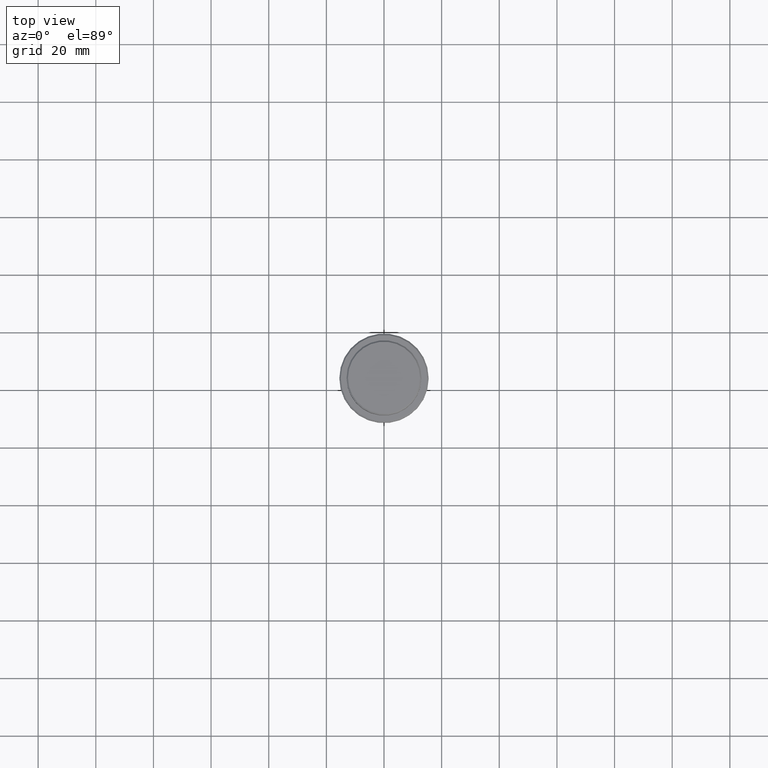
[diagram: clean part render]
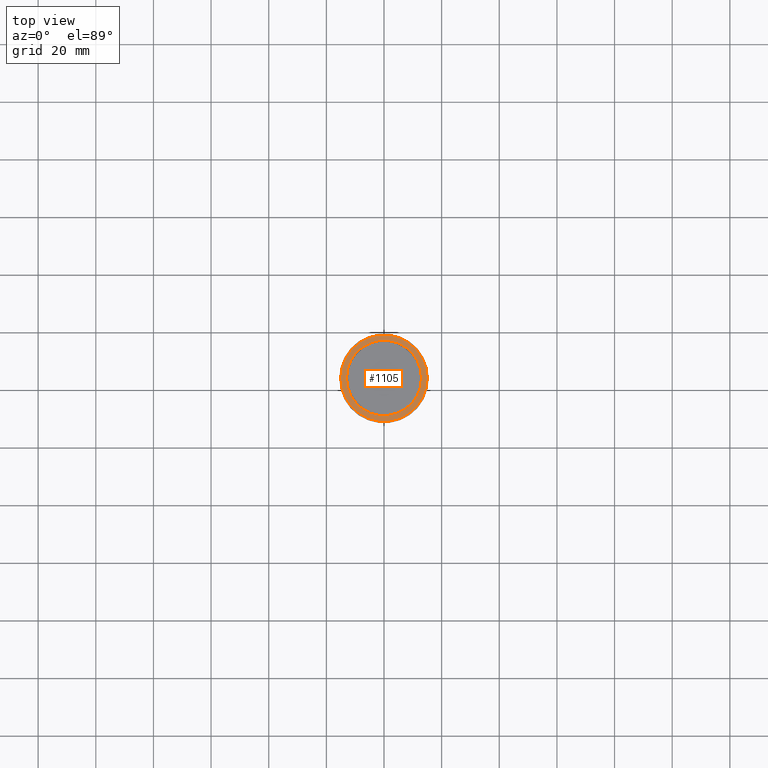
[diagram: same view with one face highlighted and labeled with its STEP entity id]
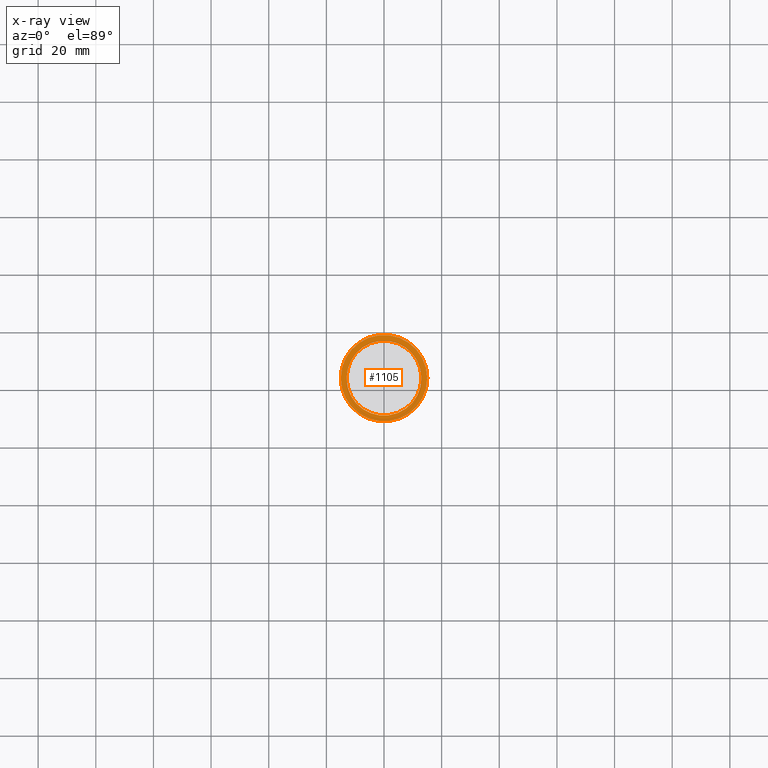
[diagram: x-ray of the same camera — body ghosted, the highlighted face saturated]
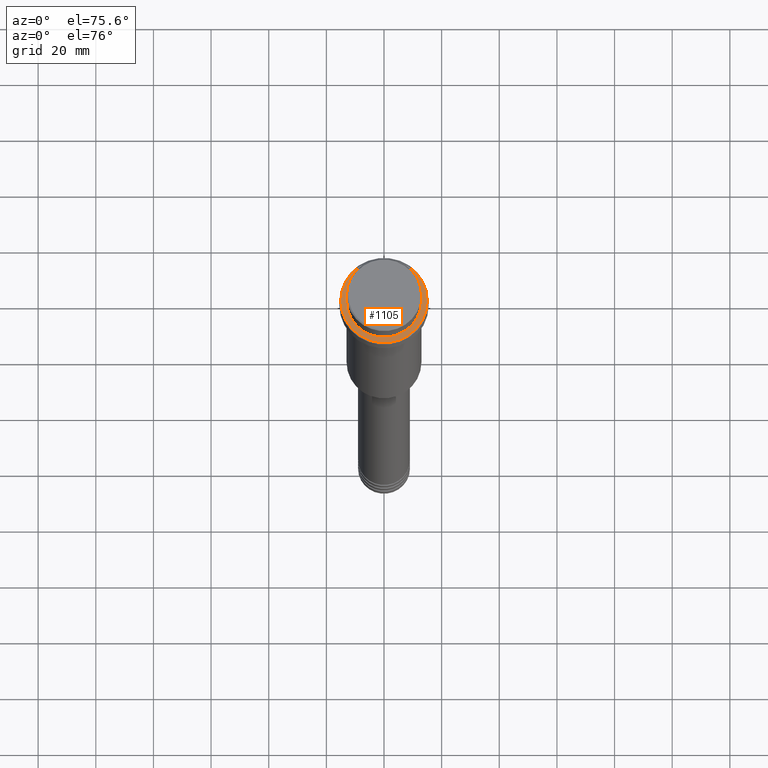
[diagram: same view with one face highlighted and labeled with its STEP entity id]
A machine part, top view. The second image highlights one B-rep face of the part: STEP entity #1105.
The next image is the same camera in x-ray: the body ghosted, the highlighted face saturated — about 0% of this face is hidden behind the body in this view.
A second angle (auxiliary view) of the same face is appended — the face is thin or edge-on in the first view.
In plain terms, the highlighted planar face has unit normal (0, -0, 1).
Its self-contained STEP definition (entity closure, byte-faithful):
#5 = AXIS2_PLACEMENT_3D ( 'NONE', #1054, #1182, #58 ) ;
#58 = DIRECTION ( 'NONE',  ( 1.000000000000000000, 0.000000000000000000, 0.000000000000000000 ) ) ;
#64 = CARTESIAN_POINT ( 'NONE',  ( 0.000000000000000000, 0.000000000000000000, -9.000000000000001776 ) ) ;
#89 = FACE_BOUND ( 'NONE', #479, .T. ) ;
#91 = AXIS2_PLACEMENT_3D ( 'NONE', #1295, #988, #536 ) ;
#147 = VERTEX_POINT ( 'NONE', #1050 ) ;
#215 = AXIS2_PLACEMENT_3D ( 'NONE', #819, #1255, #276 ) ;
#276 = DIRECTION ( 'NONE',  ( 1.000000000000000000, 0.000000000000000000, 0.000000000000000000 ) ) ;
#290 = ORIENTED_EDGE ( 'NONE', *, *, #1355, .T. ) ;
#367 = DIRECTION ( 'NONE',  ( 0.000000000000000000, 0.000000000000000000, -1.000000000000000000 ) ) ;
#414 = DIRECTION ( 'NONE',  ( 1.000000000000000000, 0.000000000000000000, 0.000000000000000000 ) ) ;
#427 = CIRCLE ( 'NONE', #5, 15.00000000000004086 ) ;
#479 = EDGE_LOOP ( 'NONE', ( #290, #636 ) ) ;
#536 = DIRECTION ( 'NONE',  ( 1.000000000000000000, 0.000000000000000000, 0.000000000000000000 ) ) ;
#539 = CARTESIAN_POINT ( 'NONE',  ( -15.00000000000004086, 0.000000000000000000, -9.000000000000001776 ) ) ;
#597 = EDGE_CURVE ( 'NONE', #703, #930, #427, .T. ) ;
#636 = ORIENTED_EDGE ( 'NONE', *, *, #644, .T. ) ;
#644 = EDGE_CURVE ( 'NONE', #147, #1348, #1268, .T. ) ;
#667 = EDGE_CURVE ( 'NONE', #930, #703, #831, .T. ) ;
#674 = CARTESIAN_POINT ( 'NONE',  ( 0.000000000000000000, 0.000000000000000000, -9.000000000000001776 ) ) ;
#698 = CARTESIAN_POINT ( 'NONE',  ( 12.99999999999999467, 0.000000000000000000, -9.000000000000001776 ) ) ;
#703 = VERTEX_POINT ( 'NONE', #539 ) ;
#704 = ORIENTED_EDGE ( 'NONE', *, *, #667, .T. ) ;
#739 = DIRECTION ( 'NONE',  ( 0.000000000000000000, 0.000000000000000000, -1.000000000000000000 ) ) ;
#806 = AXIS2_PLACEMENT_3D ( 'NONE', #674, #367, #906 ) ;
#812 = CARTESIAN_POINT ( 'NONE',  ( 15.00000000000004086, 1.867586368699716531E-15, -9.000000000000001776 ) ) ;
#819 = CARTESIAN_POINT ( 'NONE',  ( 0.000000000000000000, 0.000000000000000000, -9.000000000000001776 ) ) ;
#831 = CIRCLE ( 'NONE', #215, 15.00000000000004086 ) ;
#906 = DIRECTION ( 'NONE',  ( 1.000000000000000000, 0.000000000000000000, 0.000000000000000000 ) ) ;
#930 = VERTEX_POINT ( 'NONE', #812 ) ;
#973 = AXIS2_PLACEMENT_3D ( 'NONE', #64, #739, #414 ) ;
#988 = DIRECTION ( 'NONE',  ( 0.000000000000000000, -0.000000000000000000, 1.000000000000000000 ) ) ;
#1050 = CARTESIAN_POINT ( 'NONE',  ( -12.99999999999999467, 1.592040838891558504E-15, -9.000000000000001776 ) ) ;
#1054 = CARTESIAN_POINT ( 'NONE',  ( 0.000000000000000000, 0.000000000000000000, -9.000000000000001776 ) ) ;
#1068 = ORIENTED_EDGE ( 'NONE', *, *, #597, .T. ) ;
#1105 = ADVANCED_FACE ( 'NONE', ( #1411, #89 ), #1300, .T. ) ;
#1182 = DIRECTION ( 'NONE',  ( -0.000000000000000000, -0.000000000000000000, 1.000000000000000000 ) ) ;
#1255 = DIRECTION ( 'NONE',  ( -0.000000000000000000, -0.000000000000000000, 1.000000000000000000 ) ) ;
#1268 = CIRCLE ( 'NONE', #973, 12.99999999999999467 ) ;
#1295 = CARTESIAN_POINT ( 'NONE',  ( 0.000000000000000000, 12.49999999999999289, -9.000000000000001776 ) ) ;
#1300 = PLANE ( 'NONE',  #91 ) ;
#1329 = CIRCLE ( 'NONE', #806, 12.99999999999999467 ) ;
#1348 = VERTEX_POINT ( 'NONE', #698 ) ;
#1349 = EDGE_LOOP ( 'NONE', ( #1068, #704 ) ) ;
#1355 = EDGE_CURVE ( 'NONE', #1348, #147, #1329, .T. ) ;
#1411 = FACE_OUTER_BOUND ( 'NONE', #1349, .T. ) ;